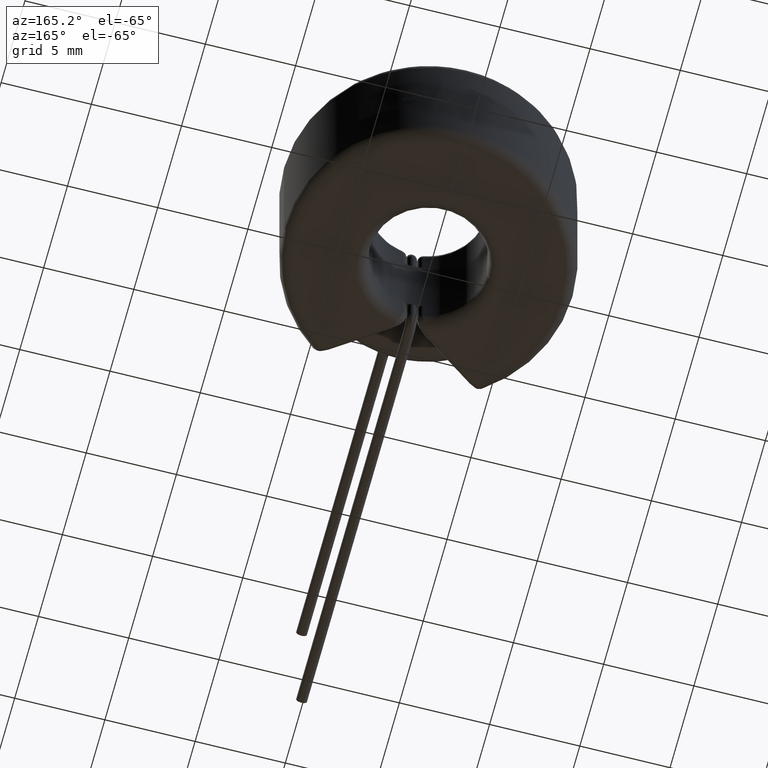
[diagram: clean part render]
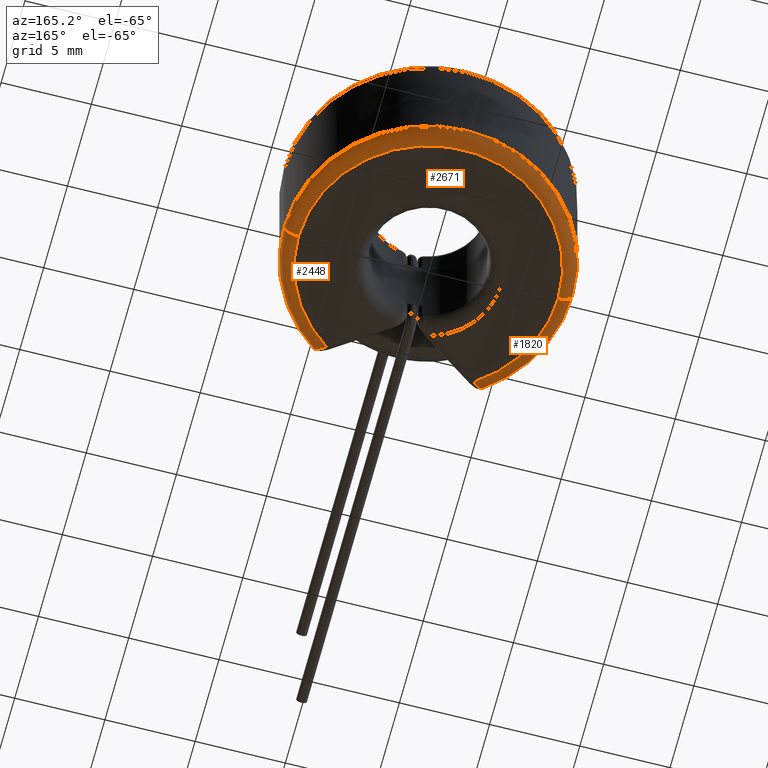
[diagram: same view with one multi-face feature highlighted, each face labeled with its STEP entity id]
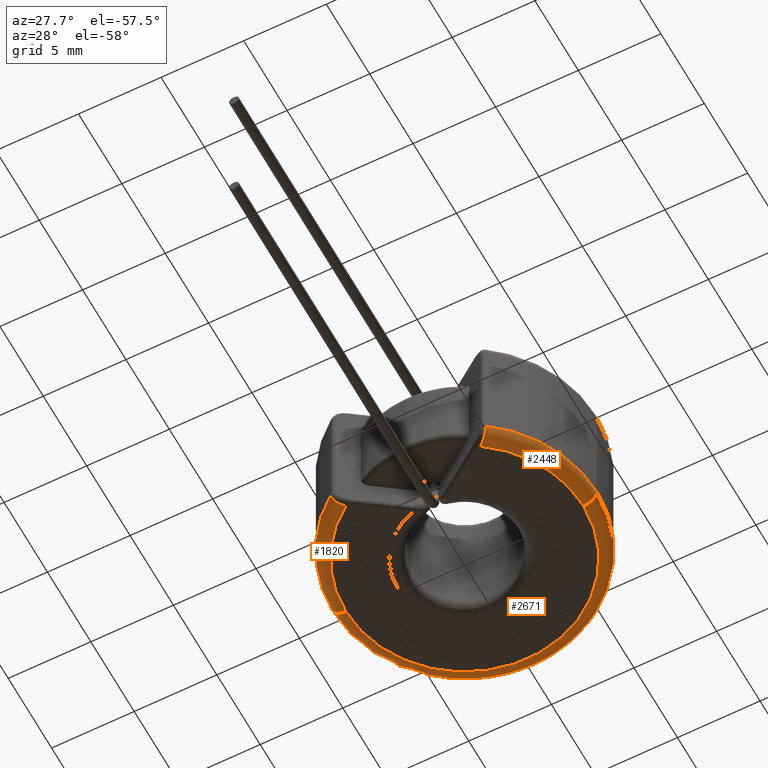
[diagram: same view with one multi-face feature highlighted, each face labeled with its STEP entity id]
A machine part, auxiliary view. The highlighted faces form ONE feature: a constant-radius fillet chain: 3 tangent blend faces with common blend radius 0.8 mm. The faces share edges in the B-rep.
A second angle (auxiliary view) of the same feature is appended — it is thin or edge-on in the first view.
Their STEP definitions:
[1] entity #1820 (Torus):
#16 = CARTESIAN_POINT ( 'NONE',  ( -4.084243991975897714, -5.929498377941322396, -4.500000000000000000 ) ) ;
#308 = EDGE_CURVE ( 'NONE', #663, #2604, #2401, .T. ) ;
#640 = TOROIDAL_SURFACE ( 'NONE', #2901, 7.200000000000000178, 0.8000000000000000444 ) ;
#663 = VERTEX_POINT ( 'NONE', #3754 ) ;
#753 = CARTESIAN_POINT ( 'NONE',  ( 0.0000000000000000000, 0.0000000000000000000, -4.500000000000000000 ) ) ;
#786 = CARTESIAN_POINT ( 'NONE',  ( -4.627612101611724427, -6.416230038447206852, -4.122584531776595007 ) ) ;
#853 = DIRECTION ( 'NONE',  ( 0.0000000000000000000, 0.0000000000000000000, 1.000000000000000000 ) ) ;
#884 = AXIS2_PLACEMENT_3D ( 'NONE', #2723, #1407, #1063 ) ;
#1018 = EDGE_CURVE ( 'NONE', #2460, #1750, #1573, .T. ) ;
#1044 = CARTESIAN_POINT ( 'NONE',  ( -4.163487719246116825, -6.001503509287345217, -4.500000000000001776 ) ) ;
#1063 = DIRECTION ( 'NONE',  ( -1.000000000000000000, 1.224646799147353207E-16, 0.0000000000000000000 ) ) ;
#1104 = DIRECTION ( 'NONE',  ( 1.000000000000000000, 0.0000000000000000000, 0.0000000000000000000 ) ) ;
#1110 = DIRECTION ( 'NONE',  ( 1.000000000000000000, 1.776356839400250465E-15, 0.0000000000000000000 ) ) ;
#1392 = ORIENTED_EDGE ( 'NONE', *, *, #308, .F. ) ;
#1407 = DIRECTION ( 'NONE',  ( 1.224646799147353207E-16, 1.000000000000000000, -0.0000000000000000000 ) ) ;
#1423 = DIRECTION ( 'NONE',  ( 0.0000000000000000000, 0.0000000000000000000, 1.000000000000000000 ) ) ;
#1573 = CIRCLE ( 'NONE', #1880, 7.200000000000000178 ) ;
#1613 = B_SPLINE_CURVE_WITH_KNOTS ( 'NONE', 3,
 ( #16, #1044, #3634, #2031, #1730, #786, #3998, #2059 ),
 .UNSPECIFIED., .F., .F.,
 ( 4, 2, 2, 4 ),
 ( 1.226634733346699349E-18, 0.0003164293713260614947, 0.0006328587426521216884, 0.001265717485304240992 ),
 .UNSPECIFIED. ) ;
#1628 = CARTESIAN_POINT ( 'NONE',  ( -4.696301019319479408, -6.476477185626366762, -3.699999999999999289 ) ) ;
#1730 = CARTESIAN_POINT ( 'NONE',  ( -4.455960404627741234, -6.263844990414307645, -4.343223261611765196 ) ) ;
#1750 = VERTEX_POINT ( 'NONE', #3142 ) ;
#1820 = ADVANCED_FACE ( 'NONE', ( #3370 ), #640, .T. ) ;
#1851 = ORIENTED_EDGE ( 'NONE', *, *, #2240, .T. ) ;
#1880 = AXIS2_PLACEMENT_3D ( 'NONE', #753, #3339, #1110 ) ;
#2031 = CARTESIAN_POINT ( 'NONE',  ( -4.388526536905041908, -6.203757084158338486, -4.401159224037455964 ) ) ;
#2059 = CARTESIAN_POINT ( 'NONE',  ( -4.696301019319479408, -6.476477185626366762, -3.699999999999999289 ) ) ;
#2240 = EDGE_CURVE ( 'NONE', #2460, #2604, #1613, .T. ) ;
#2292 = AXIS2_PLACEMENT_3D ( 'NONE', #4103, #853, #4200 ) ;
#2401 = CIRCLE ( 'NONE', #2292, 8.000000000000000000 ) ;
#2460 = VERTEX_POINT ( 'NONE', #3119 ) ;
#2565 = ORIENTED_EDGE ( 'NONE', *, *, #1018, .F. ) ;
#2604 = VERTEX_POINT ( 'NONE', #1628 ) ;
#2723 = CARTESIAN_POINT ( 'NONE',  ( -7.200000000000000178, 8.817456953860942303E-16, -3.699999999999999289 ) ) ;
#2901 = AXIS2_PLACEMENT_3D ( 'NONE', #4074, #1423, #1104 ) ;
#3094 = CIRCLE ( 'NONE', #884, 0.8000000000000003775 ) ;
#3119 = CARTESIAN_POINT ( 'NONE',  ( -4.084243991975897714, -5.929498377941322396, -4.500000000000000000 ) ) ;
#3142 = CARTESIAN_POINT ( 'NONE',  ( -7.200000000000000178, 9.307315673519885459E-16, -4.500000000000000000 ) ) ;
#3339 = DIRECTION ( 'NONE',  ( -0.0000000000000000000, -0.0000000000000000000, -1.000000000000000000 ) ) ;
#3370 = FACE_OUTER_BOUND ( 'NONE', #3777, .T. ) ;
#3634 = CARTESIAN_POINT ( 'NONE',  ( -4.241191238579729905, -6.071601449458162492, -4.479960507164950201 ) ) ;
#3754 = CARTESIAN_POINT ( 'NONE',  ( -8.000000000000000000, 0.0000000000000000000, -3.699999999999999289 ) ) ;
#3777 = EDGE_LOOP ( 'NONE', ( #4188, #2565, #1851, #1392 ) ) ;
#3998 = CARTESIAN_POINT ( 'NONE',  ( -4.696301019319568226, -6.476477185626431599, -3.914317161723013250 ) ) ;
#4074 = CARTESIAN_POINT ( 'NONE',  ( 0.0000000000000000000, 0.0000000000000000000, -3.699999999999999289 ) ) ;
#4103 = CARTESIAN_POINT ( 'NONE',  ( 0.0000000000000000000, 0.0000000000000000000, -3.699999999999999289 ) ) ;
#4104 = EDGE_CURVE ( 'NONE', #1750, #663, #3094, .T. ) ;
#4188 = ORIENTED_EDGE ( 'NONE', *, *, #4104, .F. ) ;
#4200 = DIRECTION ( 'NONE',  ( 1.000000000000000000, 0.0000000000000000000, 0.0000000000000000000 ) ) ;
[2] entity #2671 (Torus):
#113 = DIRECTION ( 'NONE',  ( 1.000000000000000000, 0.0000000000000000000, 0.0000000000000000000 ) ) ;
#173 = CARTESIAN_POINT ( 'NONE',  ( 0.0000000000000000000, 0.0000000000000000000, -3.699999999999999289 ) ) ;
#249 = EDGE_LOOP ( 'NONE', ( #3257, #2404, #3608, #1445 ) ) ;
#563 = DIRECTION ( 'NONE',  ( 1.000000000000000000, 0.0000000000000000000, 0.0000000000000000000 ) ) ;
#663 = VERTEX_POINT ( 'NONE', #3754 ) ;
#745 = AXIS2_PLACEMENT_3D ( 'NONE', #2634, #1010, #3933 ) ;
#875 = VERTEX_POINT ( 'NONE', #1981 ) ;
#884 = AXIS2_PLACEMENT_3D ( 'NONE', #2723, #1407, #1063 ) ;
#1010 = DIRECTION ( 'NONE',  ( 0.0000000000000000000, -1.000000000000000000, 0.0000000000000000000 ) ) ;
#1063 = DIRECTION ( 'NONE',  ( -1.000000000000000000, 1.224646799147353207E-16, 0.0000000000000000000 ) ) ;
#1081 = EDGE_CURVE ( 'NONE', #1324, #663, #2273, .T. ) ;
#1087 = DIRECTION ( 'NONE',  ( 0.0000000000000000000, 0.0000000000000000000, 1.000000000000000000 ) ) ;
#1140 = TOROIDAL_SURFACE ( 'NONE', #3878, 7.200000000000000178, 0.8000000000000000444 ) ;
#1288 = DIRECTION ( 'NONE',  ( -0.0000000000000000000, -0.0000000000000000000, -1.000000000000000000 ) ) ;
#1324 = VERTEX_POINT ( 'NONE', #2621 ) ;
#1407 = DIRECTION ( 'NONE',  ( 1.224646799147353207E-16, 1.000000000000000000, -0.0000000000000000000 ) ) ;
#1415 = DIRECTION ( 'NONE',  ( 1.000000000000000000, 0.0000000000000000000, 0.0000000000000000000 ) ) ;
#1445 = ORIENTED_EDGE ( 'NONE', *, *, #2708, .F. ) ;
#1536 = CARTESIAN_POINT ( 'NONE',  ( 0.0000000000000000000, 0.0000000000000000000, -4.500000000000000000 ) ) ;
#1750 = VERTEX_POINT ( 'NONE', #3142 ) ;
#1801 = CIRCLE ( 'NONE', #745, 0.8000000000000003775 ) ;
#1981 = CARTESIAN_POINT ( 'NONE',  ( 7.200000000000001066, 0.0000000000000000000, -4.500000000000000000 ) ) ;
#2273 = CIRCLE ( 'NONE', #3936, 8.000000000000000000 ) ;
#2377 = CARTESIAN_POINT ( 'NONE',  ( 0.0000000000000000000, 0.0000000000000000000, -3.699999999999999289 ) ) ;
#2404 = ORIENTED_EDGE ( 'NONE', *, *, #4104, .T. ) ;
#2621 = CARTESIAN_POINT ( 'NONE',  ( 8.000000000000000000, 9.797174393178825657E-16, -3.699999999999999289 ) ) ;
#2634 = CARTESIAN_POINT ( 'NONE',  ( 7.200000000000000178, 0.0000000000000000000, -3.699999999999999289 ) ) ;
#2671 = ADVANCED_FACE ( 'NONE', ( #3980 ), #1140, .T. ) ;
#2708 = EDGE_CURVE ( 'NONE', #875, #1324, #1801, .T. ) ;
#2723 = CARTESIAN_POINT ( 'NONE',  ( -7.200000000000000178, 8.817456953860942303E-16, -3.699999999999999289 ) ) ;
#2774 = DIRECTION ( 'NONE',  ( 0.0000000000000000000, 0.0000000000000000000, 1.000000000000000000 ) ) ;
#3047 = CIRCLE ( 'NONE', #3224, 7.200000000000000178 ) ;
#3094 = CIRCLE ( 'NONE', #884, 0.8000000000000003775 ) ;
#3142 = CARTESIAN_POINT ( 'NONE',  ( -7.200000000000000178, 9.307315673519885459E-16, -4.500000000000000000 ) ) ;
#3224 = AXIS2_PLACEMENT_3D ( 'NONE', #1536, #1288, #1415 ) ;
#3257 = ORIENTED_EDGE ( 'NONE', *, *, #3572, .F. ) ;
#3572 = EDGE_CURVE ( 'NONE', #1750, #875, #3047, .T. ) ;
#3608 = ORIENTED_EDGE ( 'NONE', *, *, #1081, .F. ) ;
#3754 = CARTESIAN_POINT ( 'NONE',  ( -8.000000000000000000, 0.0000000000000000000, -3.699999999999999289 ) ) ;
#3878 = AXIS2_PLACEMENT_3D ( 'NONE', #2377, #1087, #113 ) ;
#3933 = DIRECTION ( 'NONE',  ( 0.0000000000000000000, 0.0000000000000000000, -1.000000000000000000 ) ) ;
#3936 = AXIS2_PLACEMENT_3D ( 'NONE', #173, #2774, #563 ) ;
#3980 = FACE_OUTER_BOUND ( 'NONE', #249, .T. ) ;
#4104 = EDGE_CURVE ( 'NONE', #1750, #663, #3094, .T. ) ;
[3] entity #2448 (Torus):
#37 = CARTESIAN_POINT ( 'NONE',  ( 4.242191708299792197, -6.072500333616747348, -4.479508417002255882 ) ) ;
#92 = AXIS2_PLACEMENT_3D ( 'NONE', #4050, #4081, #2109 ) ;
#98 = VERTEX_POINT ( 'NONE', #388 ) ;
#315 = CARTESIAN_POINT ( 'NONE',  ( 4.570395332524538112, -6.365434648688201413, -4.196027129727352367 ) ) ;
#342 = CARTESIAN_POINT ( 'NONE',  ( 4.084243991975900379, -5.929498377941320619, -4.500000000000000000 ) ) ;
#388 = CARTESIAN_POINT ( 'NONE',  ( 4.696301019319481185, -6.476477185626364985, -3.699999999999999289 ) ) ;
#391 = CARTESIAN_POINT ( 'NONE',  ( 0.0000000000000000000, 0.0000000000000000000, -4.500000000000000000 ) ) ;
#516 = DIRECTION ( 'NONE',  ( 1.000000000000000000, 0.0000000000000000000, 0.0000000000000000000 ) ) ;
#726 = ORIENTED_EDGE ( 'NONE', *, *, #2667, .F. ) ;
#745 = AXIS2_PLACEMENT_3D ( 'NONE', #2634, #1010, #3933 ) ;
#875 = VERTEX_POINT ( 'NONE', #1981 ) ;
#957 = CARTESIAN_POINT ( 'NONE',  ( 4.679760066193288992, -6.461938706144985112, -3.912283083404119566 ) ) ;
#1007 = DIRECTION ( 'NONE',  ( -0.0000000000000000000, -0.0000000000000000000, -1.000000000000000000 ) ) ;
#1010 = DIRECTION ( 'NONE',  ( 0.0000000000000000000, -1.000000000000000000, 0.0000000000000000000 ) ) ;
#1292 = CARTESIAN_POINT ( 'NONE',  ( 4.616897825347439976, -6.406502229189894315, -4.107022306407313472 ) ) ;
#1324 = VERTEX_POINT ( 'NONE', #2621 ) ;
#1388 = CIRCLE ( 'NONE', #1850, 7.200000000000000178 ) ;
#1397 = ORIENTED_EDGE ( 'NONE', *, *, #2708, .T. ) ;
#1471 = CARTESIAN_POINT ( 'NONE',  ( 4.084243991975900379, -5.929498377941320619, -4.500000000000000000 ) ) ;
#1472 = EDGE_CURVE ( 'NONE', #98, #1324, #3894, .T. ) ;
#1496 = FACE_OUTER_BOUND ( 'NONE', #2764, .T. ) ;
#1655 = DIRECTION ( 'NONE',  ( 1.000000000000000000, 0.0000000000000000000, 0.0000000000000000000 ) ) ;
#1728 = VERTEX_POINT ( 'NONE', #342 ) ;
#1801 = CIRCLE ( 'NONE', #745, 0.8000000000000003775 ) ;
#1850 = AXIS2_PLACEMENT_3D ( 'NONE', #391, #1007, #1655 ) ;
#1981 = CARTESIAN_POINT ( 'NONE',  ( 7.200000000000001066, 0.0000000000000000000, -4.500000000000000000 ) ) ;
#2007 = CARTESIAN_POINT ( 'NONE',  ( 4.388372945592945662, -6.203617817541958956, -4.401157884841650159 ) ) ;
#2109 = DIRECTION ( 'NONE',  ( 1.000000000000000000, 0.0000000000000000000, 0.0000000000000000000 ) ) ;
#2136 = CARTESIAN_POINT ( 'NONE',  ( 0.0000000000000000000, 0.0000000000000000000, -3.699999999999999289 ) ) ;
#2268 = CARTESIAN_POINT ( 'NONE',  ( 4.696301019319479408, -6.476477185626364985, -3.807024636453844924 ) ) ;
#2324 = CARTESIAN_POINT ( 'NONE',  ( 4.163399734041655975, -6.001423561177603894, -4.500000000000001776 ) ) ;
#2448 = ADVANCED_FACE ( 'NONE', ( #1496 ), #3356, .T. ) ;
#2490 = DIRECTION ( 'NONE',  ( 0.0000000000000000000, 0.0000000000000000000, 1.000000000000000000 ) ) ;
#2587 = CARTESIAN_POINT ( 'NONE',  ( 4.696301019319481185, -6.476477185626364985, -3.699999999999999289 ) ) ;
#2600 = CARTESIAN_POINT ( 'NONE',  ( 4.456575718503997585, -6.264392020561136754, -4.342534839688976689 ) ) ;
#2621 = CARTESIAN_POINT ( 'NONE',  ( 8.000000000000000000, 9.797174393178825657E-16, -3.699999999999999289 ) ) ;
#2634 = CARTESIAN_POINT ( 'NONE',  ( 7.200000000000000178, 0.0000000000000000000, -3.699999999999999289 ) ) ;
#2667 = EDGE_CURVE ( 'NONE', #875, #1728, #1388, .T. ) ;
#2708 = EDGE_CURVE ( 'NONE', #875, #1324, #1801, .T. ) ;
#2764 = EDGE_LOOP ( 'NONE', ( #726, #1397, #3354, #3511 ) ) ;
#2842 = B_SPLINE_CURVE_WITH_KNOTS ( 'NONE', 3,
 ( #2587, #2268, #957, #1292, #315, #2600, #2007, #37, #2324, #1471 ),
 .UNSPECIFIED., .F., .F.,
 ( 4, 2, 2, 2, 4 ),
 ( 0.0000000000000000000, 0.0003166957063594783711, 0.0006333914127189567422, 0.0009500871190784351134, 0.001266782825437913484 ),
 .UNSPECIFIED. ) ;
#3116 = AXIS2_PLACEMENT_3D ( 'NONE', #2136, #2490, #516 ) ;
#3354 = ORIENTED_EDGE ( 'NONE', *, *, #1472, .F. ) ;
#3356 = TOROIDAL_SURFACE ( 'NONE', #92, 7.200000000000000178, 0.8000000000000000444 ) ;
#3360 = EDGE_CURVE ( 'NONE', #98, #1728, #2842, .T. ) ;
#3511 = ORIENTED_EDGE ( 'NONE', *, *, #3360, .T. ) ;
#3894 = CIRCLE ( 'NONE', #3116, 8.000000000000000000 ) ;
#3933 = DIRECTION ( 'NONE',  ( 0.0000000000000000000, 0.0000000000000000000, -1.000000000000000000 ) ) ;
#4050 = CARTESIAN_POINT ( 'NONE',  ( 0.0000000000000000000, 0.0000000000000000000, -3.699999999999999289 ) ) ;
#4081 = DIRECTION ( 'NONE',  ( 0.0000000000000000000, 0.0000000000000000000, 1.000000000000000000 ) ) ;